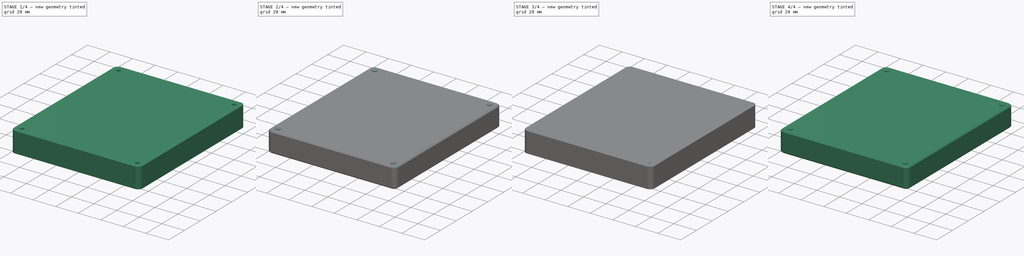
[diagram: build sequence overview — one tinted view per stage of 4, left to right]
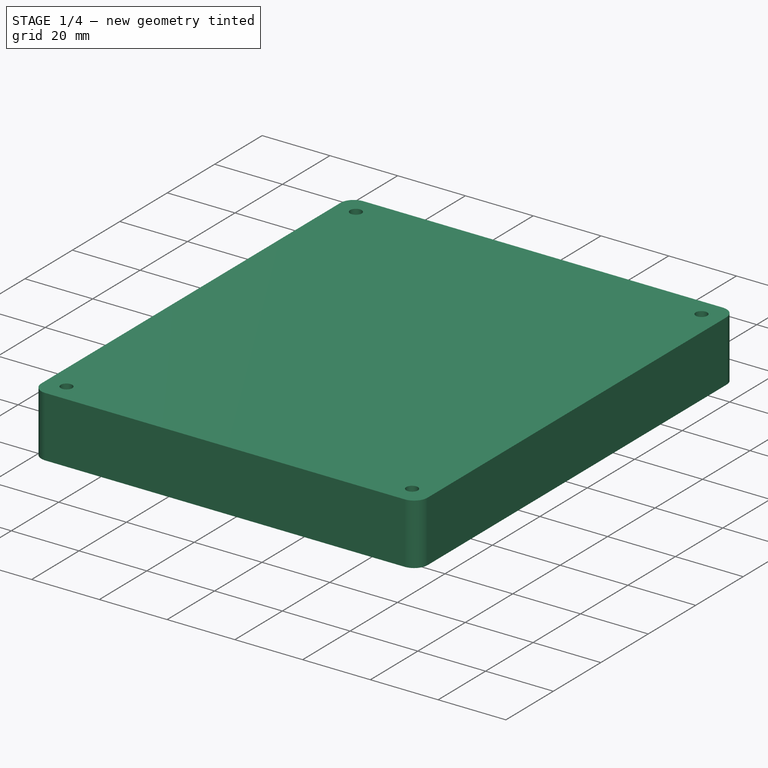
[diagram: stage 1 of 4 — iso view after this stage's code; geometry added in this stage tinted green]
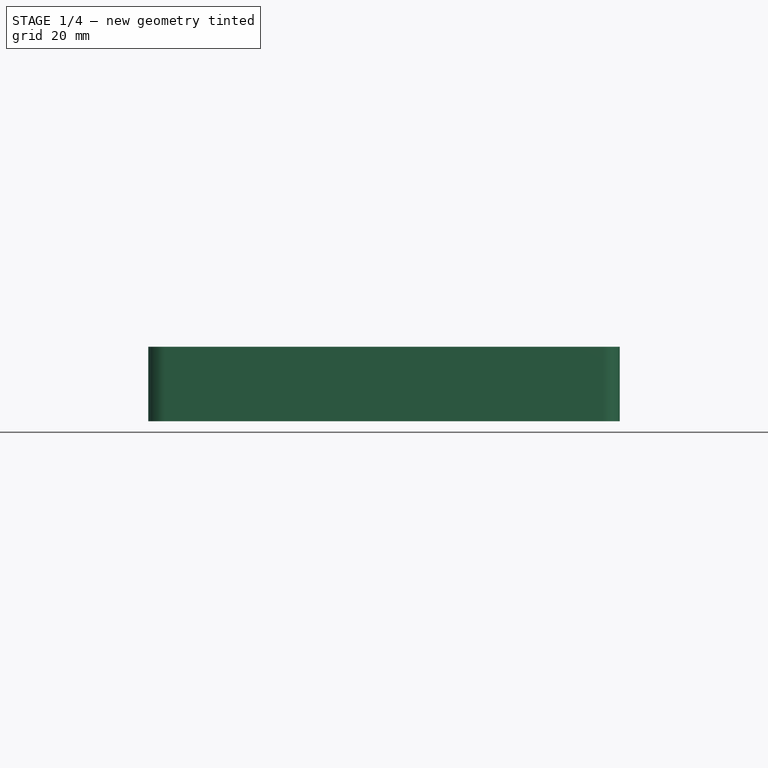
[diagram: stage 1 of 4 — front view after this stage's code; geometry added in this stage tinted green]
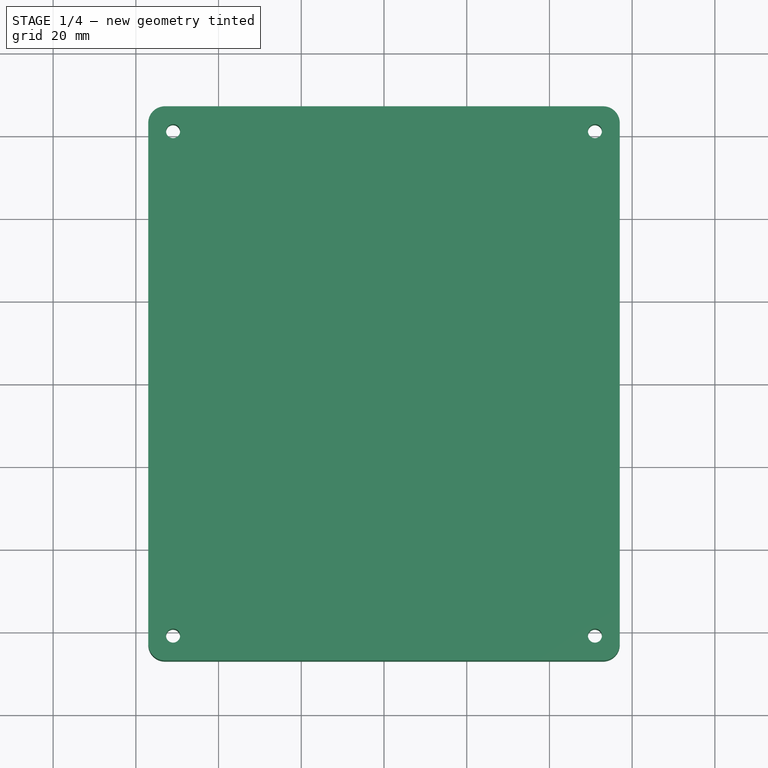
[diagram: stage 1 of 4 — top view after this stage's code; geometry added in this stage tinted green]
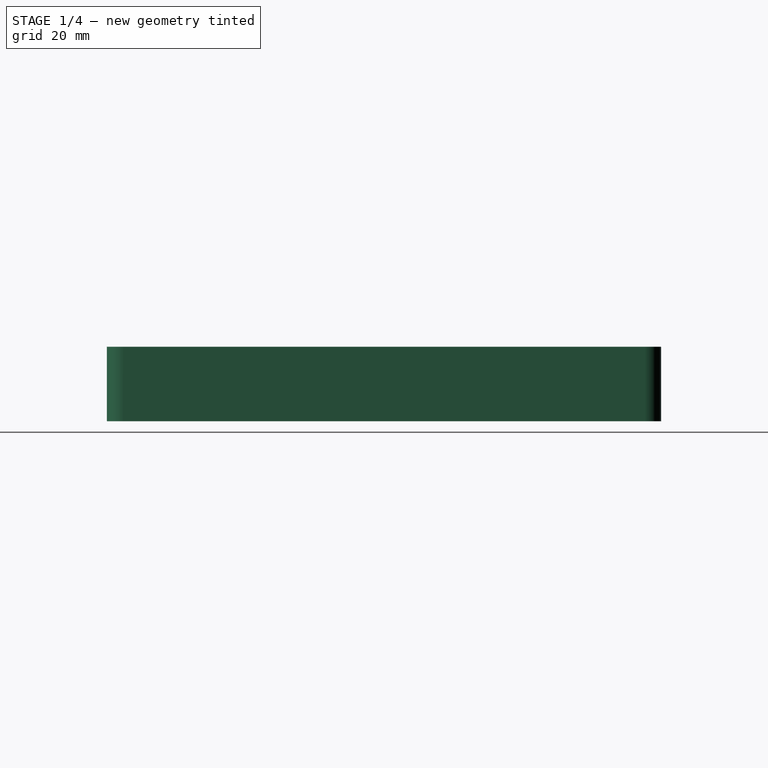
[diagram: stage 1 of 4 — right view after this stage's code; geometry added in this stage tinted green]
FCSTD DOCUMENT  (FreeCAD 0.22R36677 (Git))
Label: bit holder 3
License: All rights reserved
LicenseURL: http://en.wikipedia.org/wiki/All_rights_reserved
objects: Sketcher::SketchObject×5, Part::Extrusion×4, Part::FeaturePython×4, Part::Cut×3, Part::Chamfer×2, Spreadsheet::Sheet×1, Part::Revolution×1
note: 19 computed .brp shape members not serialized (recipe doc carries the construction recipe); baked Part::Feature solids carry a one-line shape summary decoded from their .brp

FEATURE [Sketcher::SketchObject] Sketch004  label="plate003"
  FullyConstrained = true
  expr: Constraints[19] = <<q>>.box_corner_filet
  expr: Constraints[20] = <<q>>.plate_x_size
  expr: Constraints[21] = <<q>>.plate_y_size
  sketch-geometry (10):
    g0: LineSegment StartX=-57 StartY=63 StartZ=0 EndX=-57 EndY=-63 EndZ=0
    g1: LineSegment StartX=-53 StartY=-67 StartZ=0 EndX=53 EndY=-67 EndZ=0
    g2: LineSegment StartX=57 StartY=-63 StartZ=0 EndX=57 EndY=63 EndZ=0
    g3: LineSegment StartX=53 StartY=67 StartZ=0 EndX=-53 EndY=67 EndZ=0
    g4: ArcOfCircle CenterX=-53 CenterY=63 CenterZ=0 NormalX=0 NormalY=0 NormalZ=1 AngleXU=0 Radius=4 StartAngle=1.5708 EndAngle=3.14159
    g5: ArcOfCircle CenterX=-53 CenterY=-63 CenterZ=0 NormalX=0 NormalY=0 NormalZ=1 AngleXU=0 Radius=4 StartAngle=3.14159 EndAngle=4.71239
    g6: ArcOfCircle CenterX=53 CenterY=-63 CenterZ=0 NormalX=0 NormalY=0 NormalZ=1 AngleXU=0 Radius=4 StartAngle=4.71239 EndAngle=6.28319
    g7: ArcOfCircle CenterX=53 CenterY=63 CenterZ=0 NormalX=0 NormalY=0 NormalZ=1 AngleXU=0 Radius=4 StartAngle=-9e-16 EndAngle=1.5708
    g8: GeomPoint X=-57 Y=67 Z=0
    g9: GeomPoint X=57 Y=-67 Z=0
  constraints (23):
    c: Tangent(g0,g4) = -1.5708
    c: Tangent(g0,g5) = -1.5708
    c: Tangent(g1,g5) = -1.5708
    c: Tangent(g1,g6) = -1.5708
    c: Tangent(g2,g6) = -1.5708
    c: Tangent(g2,g7) = -1.5708
    c: Tangent(g3,g7) = -1.5708
    c: Tangent(g3,g4) = -1.5708
    c: Vertical(g0)
    c: Vertical(g2)
    c: Horizontal(g1)
    c: Horizontal(g3)
    c: Equal(g4,g5)
    c: Equal(g5,g6)
    c: Equal(g6,g7)
    c: PointOnObject(g8,g0)
    c: PointOnObject(g8,g3)
    c: PointOnObject(g9,g1)
    c: PointOnObject(g9,g2)
    c: Radius(g6) = 4
    c: DistanceX(g0,g2) = 114
    c: DistanceY(g1,g3) = 134
    c: Symmetric(g5,g7,g-1)
FEATURE [Part::Extrusion] Extrude002  label="plate002"
  Base = -> Sketch004
  Dir = (0,0,1)
  DirMode = 2
  FaceMakerClass = Part::FaceMakerBullseye
  LengthFwd = 18
  LengthRev = 0
  Solid = true
  Symmetric = false
  expr: LengthFwd = <<q>>.plate_thickness
FEATURE [Sketcher::SketchObject] Sketch005
  FullyConstrained = true
  expr: Constraints[10] = <<q>>.plate_y_size - <<q>>.hole_offset
  expr: Constraints[18] = <<q>>.connecting_screw
  expr: Constraints[9] = <<q>>.plate_x_size - <<q>>.hole_offset
  sketch-geometry (8):
    g0: LineSegment StartX=-51 StartY=61 StartZ=0 EndX=-51 EndY=-61 EndZ=0
    g1: LineSegment StartX=-51 StartY=-61 StartZ=0 EndX=51 EndY=-61 EndZ=0
    g2: LineSegment StartX=51 StartY=-61 StartZ=0 EndX=51 EndY=61 EndZ=0
    g3: LineSegment StartX=51 StartY=61 StartZ=0 EndX=-51 EndY=61 EndZ=0
    g4: Circle CenterX=-51 CenterY=61 CenterZ=0 NormalX=0 NormalY=0 NormalZ=1 AngleXU=0 Radius=1.7
    g5: Circle CenterX=51 CenterY=61 CenterZ=0 NormalX=0 NormalY=0 NormalZ=1 AngleXU=0 Radius=1.7
    g6: Circle CenterX=51 CenterY=-61 CenterZ=0 NormalX=0 NormalY=0 NormalZ=1 AngleXU=0 Radius=1.7
    g7: Circle CenterX=-51 CenterY=-61 CenterZ=0 NormalX=0 NormalY=0 NormalZ=1 AngleXU=0 Radius=1.7
  constraints (19):
    c: Coincident(g0,g1)
    c: Coincident(g1,g2)
    c: Coincident(g2,g3)
    c: Coincident(g3,g0)
    c: Vertical(g0)
    c: Vertical(g2)
    c: Horizontal(g1)
    c: Horizontal(g3)
    c: Symmetric(g0,g2,g-1)
    c: DistanceX(g3,g3) = 102
    c: DistanceY(g2,g2) = 122
    c: Coincident(g4,g0)
    c: Coincident(g5,g2)
    c: Coincident(g6,g1)
    c: Coincident(g7,g0)
    c: Equal(g4,g5)
    c: Equal(g4,g6)
    c: Equal(g4,g7)
    c: Diameter(g4) = 3.4
FEATURE [Part::Extrusion] Extrude003  label="screw holes001"
  Base = -> Sketch005
  Dir = (0,0,1)
  DirMode = 2
  FaceMakerClass = Part::FaceMakerBullseye
  LengthFwd = 18
  LengthRev = 0
  Solid = true
  Symmetric = false
  expr: LengthFwd = <<q>>.plate_thickness
FEATURE [Part::Cut] Cut002
  Base = -> Extrude002
  Tool = -> Extrude003
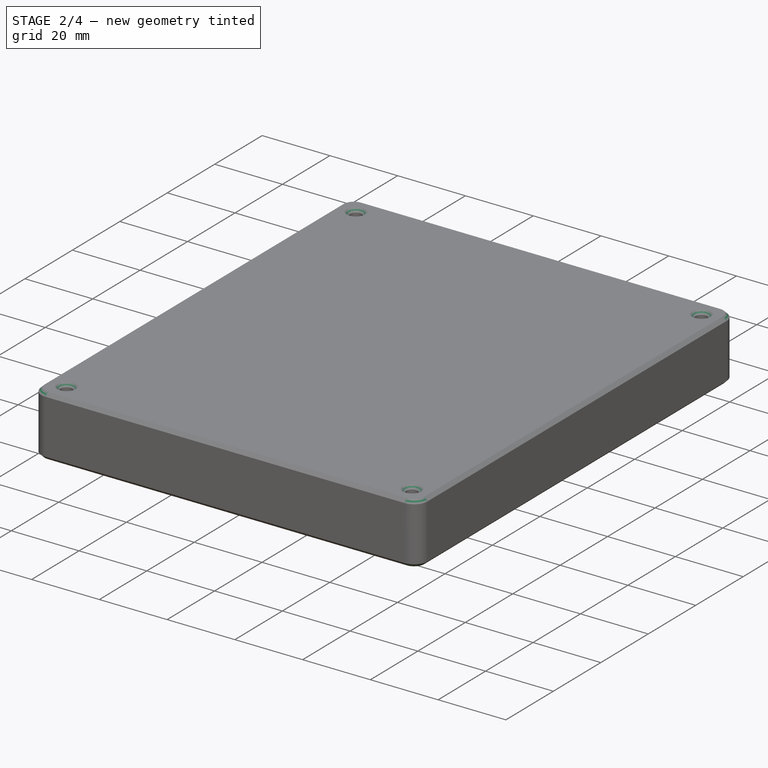
[diagram: stage 2 of 4 — iso view after this stage's code; geometry added in this stage tinted green]
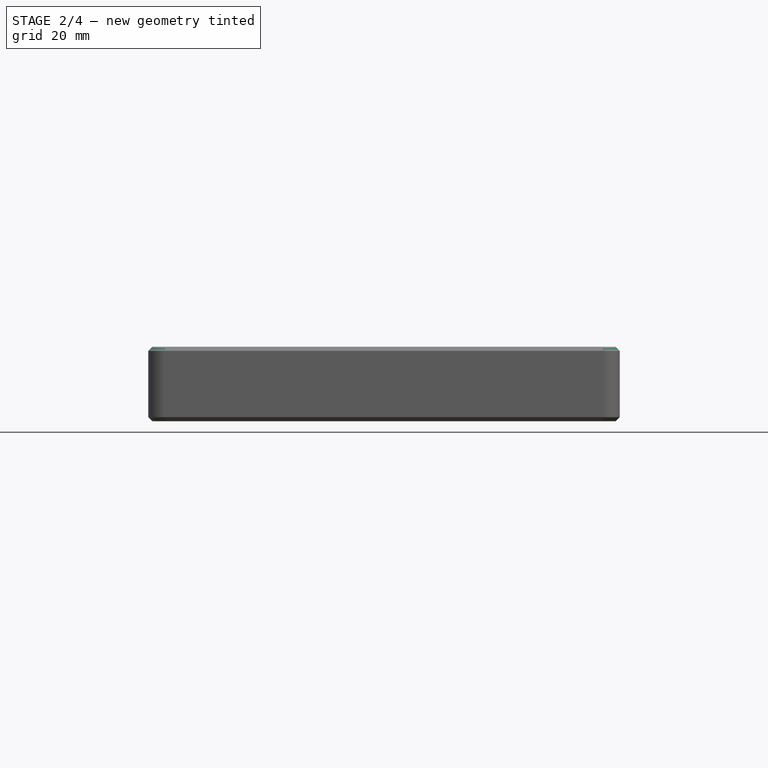
[diagram: stage 2 of 4 — front view after this stage's code; geometry added in this stage tinted green]
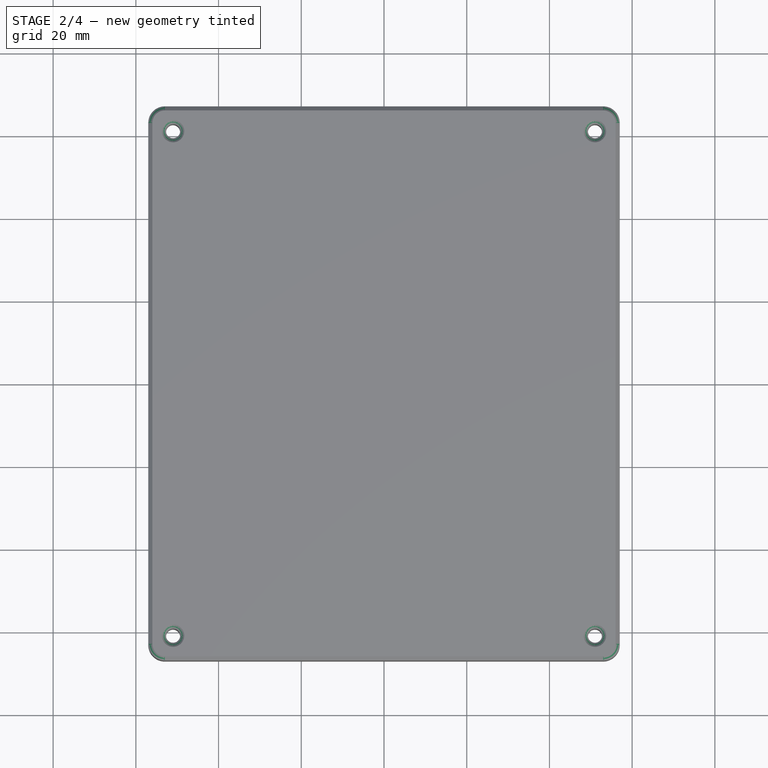
[diagram: stage 2 of 4 — top view after this stage's code; geometry added in this stage tinted green]
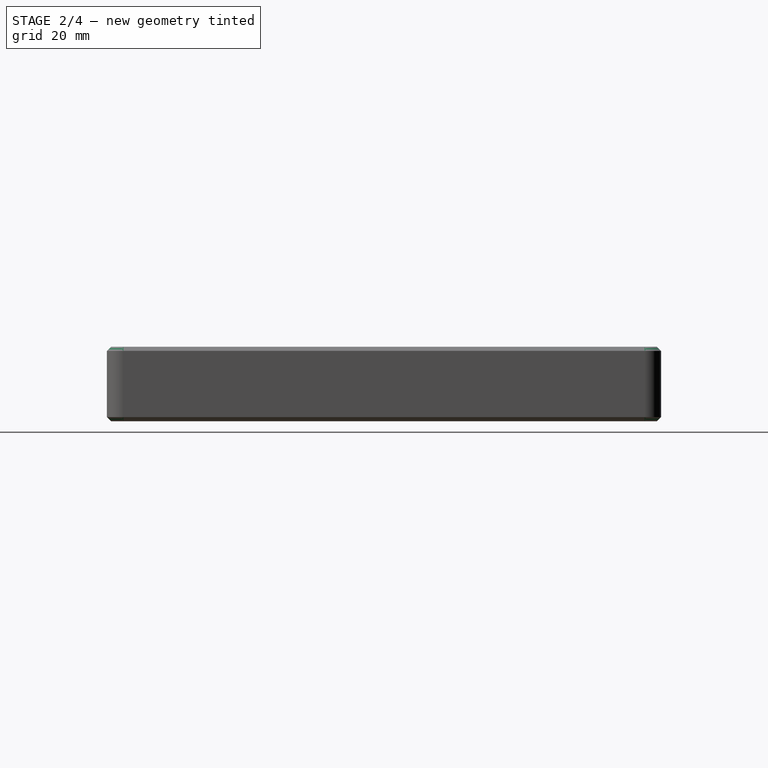
[diagram: stage 2 of 4 — right view after this stage's code; geometry added in this stage tinted green]
FEATURE [Part::FeaturePython] LinearArray  # WARN: FeaturePython — macro-defined, semantics opaque (R4)
  Alignment = 0
  CellStart = A1
  Count = 10
  Dir = (1,0,0)
  DirIsDriven = true
  DistributionLaw = 0
  DrivenProperty = 1
  EndInclusive = true
  ExposePlacement = false
  GeneratorMode = 1
  MarkerShape = 1
  MarkerSize = 0
  NumElements = 10
  OrientMode = 1
  Point = (0,0,0)
  PointIsDriven = true
  Reverse = false
  SpanEnd = 100
  SpanStart = 0
  Step = 10
  Type = lattice2LinearArray.LinearArray
  VSGVersion = 1
  Values = 0.0 | 10.0 | 20.0 | 30.0 | 40.0 | 50.0 | 60.0 | 70.0 | 80.0 | 90.0
  ValuesSource = 2
  isLattice = 1
  expr: Count = <<q>>.holes_x
  expr: Step = <<q>>.grid_spacing_x
FEATURE [Part::FeaturePython] LinearArray001  # WARN: FeaturePython — macro-defined, semantics opaque (R4)
  Alignment = 0
  CellStart = A1
  Count = 12
  Dir = (0,-1,0)
  DirIsDriven = true
  DistributionLaw = 0
  DrivenProperty = 1
  EndInclusive = true
  ExposePlacement = false
  GeneratorMode = 1
  MarkerShape = 1
  MarkerSize = 0
  NumElements = 12
  OrientMode = 1
  Point = (0,0,0)
  PointIsDriven = true
  Reverse = false
  SpanEnd = 50
  SpanStart = 0
  Step = 10
  Type = lattice2LinearArray.LinearArray
  VSGVersion = 1
  Values = 0.0 | 10.0 | 20.0 | 30.0 | 40.0 | 50.0 | 60.0 | 70.0 | 80.0 | 90.0 | 100.0 | 110.0
  ValuesSource = 2
  isLattice = 1
  expr: Count = <<q>>.holes_y
  expr: Step = <<q>>.grid_spacing_y
FEATURE [Sketcher::SketchObject] Sketch002
  FullyConstrained = true
  Placement = pos=(0,0,0) rot=(1,0,0;1.5708rad)
  expr: Constraints[12] = <<q>>.hole_depth
  expr: Constraints[9] = <<q>>.bit_hole_diameter / 2
  sketch-geometry (5):
    g0: LineSegment StartX=0 StartY=16 StartZ=0 EndX=-3.6 EndY=16 EndZ=0
    g1: LineSegment StartX=-3.6 StartY=16 StartZ=0 EndX=-2.6 EndY=15 EndZ=0
    g2: LineSegment StartX=-2.6 StartY=15 StartZ=0 EndX=-2.6 EndY=0 EndZ=0
    g3: LineSegment StartX=-2.6 StartY=0 StartZ=0 EndX=0 EndY=0 EndZ=0
    g4: LineSegment StartX=0 StartY=0 StartZ=0 EndX=0 EndY=16 EndZ=0
  constraints (14):
    c: Horizontal(g0)
    c: Coincident(g0,g1)
    c: Coincident(g1,g2)
    c: Vertical(g2)
    c: Coincident(g2,g3)
    c: Horizontal(g3)
    c: Coincident(g3,g4)
    c: Coincident(g4,g0)
    c: Vertical(g4)
    c: DistanceX(g3,g3) = 2.6
    c: DistanceX(g0,g1) = 1
    c: DistanceY(g1,g0) = 1
    c: DistanceY(g4,g4) = 16
    c: Coincident(g3,g-1)
FEATURE [Part::Revolution] Revolve  label="bit socket"
  Angle = 360
  Axis = (0,0,1)
  Base = (0,0,0)
  FaceMakerClass = Part::FaceMakerBullseye
  Placement = pos=(-45,55,2) rot=(0,0,1;0rad)
  Solid = true
  Source = -> Sketch002
  Symmetric = false
  expr: .Placement.Base.x = -<<q>>.plate_x_size / 2 + <<q>>.hole_offset
  expr: .Placement.Base.y = <<q>>.plate_y_size / 2 - <<q>>.hole_offset
  expr: .Placement.Base.z = <<q>>.plate_bottom_pad
FEATURE [Part::FeaturePython] Populate  label="Populate LinearArray with bit socket"  # WARN: FeaturePython — macro-defined, semantics opaque (R4)
  Copying = 0
  ExposePlacement = false
  MarkerShape = 1
  MarkerSize = 0
  NumElements = 0
  Object = -> Revolve
  OutputCompounding = 1
  PlacementsTo = -> LinearArray
  Referencing = 1
  Type = lattice2PopulateCopies.LatticePopulateCopies
  isLattice = 0
FEATURE [Part::Chamfer] Chamfer001  label="magnet plate with screw holes001"
  Base = -> Cut002
  EdgeLinks = -> Cut002 [Edge12,Edge16,Edge17,Edge18,Edge19,Edge20,Edge25,Edge26,Edge27,Edge28]
  Edges = 10 edges r=1: [Edge12,Edge16,Edge17,Edge18,Edge19,Edge20,Edge25,Edge26,Edge27,Edge28]
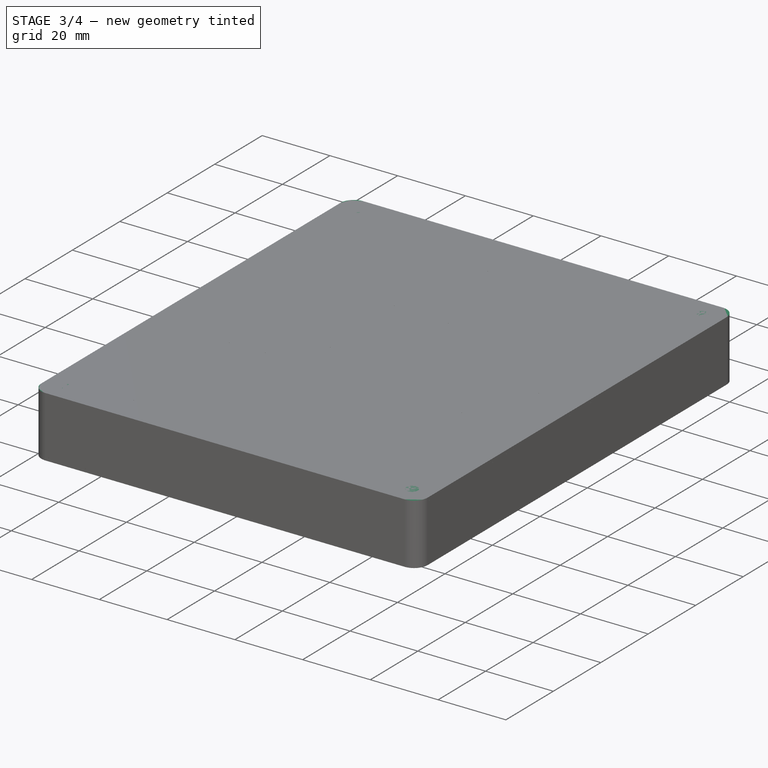
[diagram: stage 3 of 4 — iso view after this stage's code; geometry added in this stage tinted green]
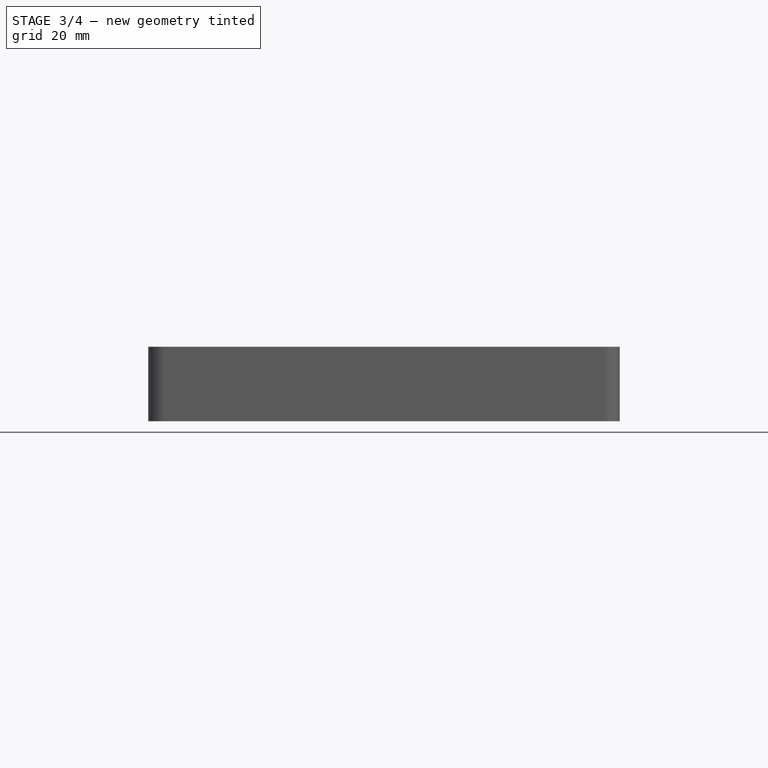
[diagram: stage 3 of 4 — front view after this stage's code; geometry added in this stage tinted green]
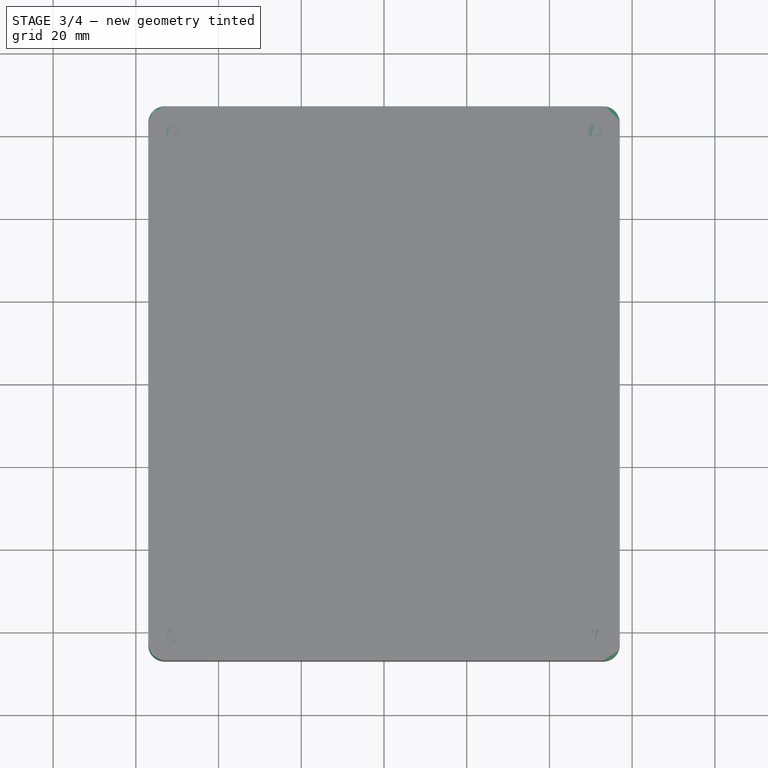
[diagram: stage 3 of 4 — top view after this stage's code; geometry added in this stage tinted green]
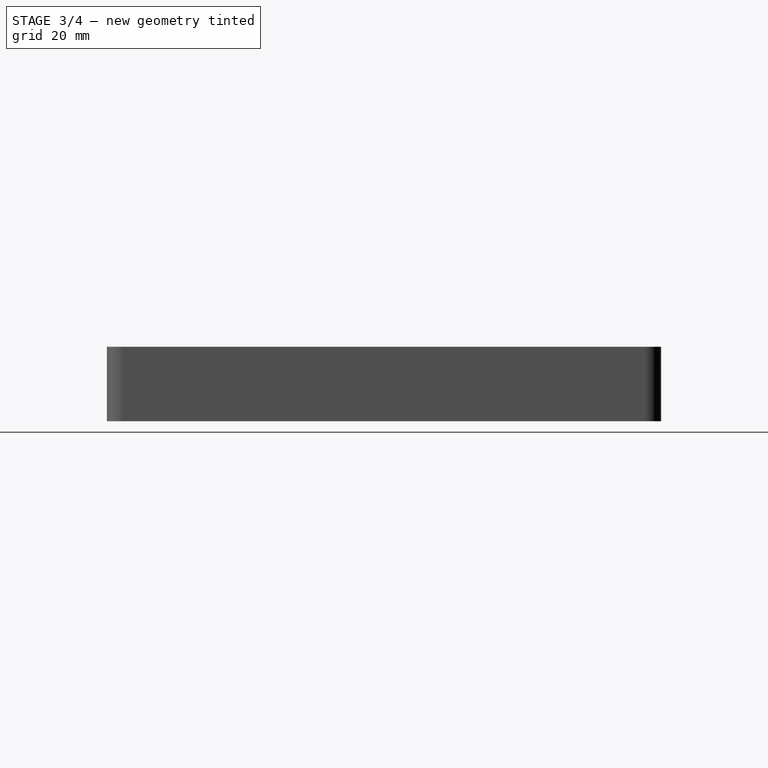
[diagram: stage 3 of 4 — right view after this stage's code; geometry added in this stage tinted green]
FEATURE [Spreadsheet::Sheet] Spreadsheet  label="q"
  cells = A3='bit hole diameter; B3(bit_hole_diameter)=5.2; A5='grid spacing x; B5(grid_spacing_x)=10; A6='grid spacing y; B6(grid_spacing_y)=10; A7='holes x; B7(holes_x)=10; A8='holes y; B8(holes_y)=12; A10='hole offset; B10(hole_offset)=12; A12='plate x size; B12(plate_x_size)==grid_spacing_x * (holes_x - 1) + 2 * hole_offset; A13='plate y size; B13(plate_y_size)==grid_spacing_y * (holes_y - 1) + 2 * hole_offset; A14='plate thickness; B14(plate_thickness)=18; A15='plate bottom pad; B15(plate_bottom_pad)=2; A16='hole depth; B16(hole_depth)==plate_thickness - plate_bottom_pad; A18='box corner filet; B18(box_corner_filet)=4; A20='connecting screw; B20(connecting_screw)=3.4; A22='magnet length; B22=60; A23='magnet width; B23=10; A24='magnet height; B24=3
FEATURE [Sketcher::SketchObject] Sketch  label="plate001"
  FullyConstrained = true
  expr: Constraints[19] = <<q>>.box_corner_filet
  expr: Constraints[20] = <<q>>.plate_x_size
  expr: Constraints[21] = <<q>>.plate_y_size
  sketch-geometry (10):
    g0: LineSegment StartX=-57 StartY=63 StartZ=0 EndX=-57 EndY=-63 EndZ=0
    g1: LineSegment StartX=-53 StartY=-67 StartZ=0 EndX=53 EndY=-67 EndZ=0
    g2: LineSegment StartX=57 StartY=-63 StartZ=0 EndX=57 EndY=63 EndZ=0
    g3: LineSegment StartX=53 StartY=67 StartZ=0 EndX=-53 EndY=67 EndZ=0
    g4: ArcOfCircle CenterX=-53 CenterY=63 CenterZ=0 NormalX=0 NormalY=0 NormalZ=1 AngleXU=0 Radius=4 StartAngle=1.5708 EndAngle=3.14159
    g5: ArcOfCircle CenterX=-53 CenterY=-63 CenterZ=0 NormalX=0 NormalY=0 NormalZ=1 AngleXU=0 Radius=4 StartAngle=3.14159 EndAngle=4.71239
    g6: ArcOfCircle CenterX=53 CenterY=-63 CenterZ=0 NormalX=0 NormalY=0 NormalZ=1 AngleXU=0 Radius=4 StartAngle=4.71239 EndAngle=6.28319
    g7: ArcOfCircle CenterX=53 CenterY=63 CenterZ=0 NormalX=0 NormalY=0 NormalZ=1 AngleXU=0 Radius=4 StartAngle=-9e-16 EndAngle=1.5708
    g8: GeomPoint X=-57 Y=67 Z=0
    g9: GeomPoint X=57 Y=-67 Z=0
  constraints (23):
    c: Tangent(g0,g4) = -1.5708
    c: Tangent(g0,g5) = -1.5708
    c: Tangent(g1,g5) = -1.5708
    c: Tangent(g1,g6) = -1.5708
    c: Tangent(g2,g6) = -1.5708
    c: Tangent(g2,g7) = -1.5708
    c: Tangent(g3,g7) = -1.5708
    c: Tangent(g3,g4) = -1.5708
    c: Vertical(g0)
    c: Vertical(g2)
    c: Horizontal(g1)
    c: Horizontal(g3)
    c: Equal(g4,g5)
    c: Equal(g5,g6)
    c: Equal(g6,g7)
    c: PointOnObject(g8,g0)
    c: PointOnObject(g8,g3)
    c: PointOnObject(g9,g1)
    c: PointOnObject(g9,g2)
    c: Radius(g6) = 4
    c: DistanceX(g0,g2) = 114
    c: DistanceY(g1,g3) = 134
    c: Symmetric(g5,g7,g-1)
FEATURE [Part::Extrusion] Extrude  label="plate"
  Base = -> Sketch
  Dir = (0,0,1)
  DirMode = 2
  FaceMakerClass = Part::FaceMakerBullseye
  LengthFwd = 18
  LengthRev = 0
  Solid = true
  Symmetric = false
  expr: LengthFwd = <<q>>.plate_thickness
FEATURE [Sketcher::SketchObject] Sketch003
  FullyConstrained = true
  expr: Constraints[10] = <<q>>.plate_y_size - <<q>>.hole_offset
  expr: Constraints[18] = <<q>>.connecting_screw
  expr: Constraints[9] = <<q>>.plate_x_size - <<q>>.hole_offset
  sketch-geometry (8):
    g0: LineSegment StartX=-51 StartY=61 StartZ=0 EndX=-51 EndY=-61 EndZ=0
    g1: LineSegment StartX=-51 StartY=-61 StartZ=0 EndX=51 EndY=-61 EndZ=0
    g2: LineSegment StartX=51 StartY=-61 StartZ=0 EndX=51 EndY=61 EndZ=0
    g3: LineSegment StartX=51 StartY=61 StartZ=0 EndX=-51 EndY=61 EndZ=0
    g4: Circle CenterX=-51 CenterY=61 CenterZ=0 NormalX=0 NormalY=0 NormalZ=1 AngleXU=0 Radius=1.7
    g5: Circle CenterX=51 CenterY=61 CenterZ=0 NormalX=0 NormalY=0 NormalZ=1 AngleXU=0 Radius=1.7
    g6: Circle CenterX=51 CenterY=-61 CenterZ=0 NormalX=0 NormalY=0 NormalZ=1 AngleXU=0 Radius=1.7
    g7: Circle CenterX=-51 CenterY=-61 CenterZ=0 NormalX=0 NormalY=0 NormalZ=1 AngleXU=0 Radius=1.7
  constraints (19):
    c: Coincident(g0,g1)
    c: Coincident(g1,g2)
    c: Coincident(g2,g3)
    c: Coincident(g3,g0)
    c: Vertical(g0)
    c: Vertical(g2)
    c: Horizontal(g1)
    c: Horizontal(g3)
    c: Symmetric(g0,g2,g-1)
    c: DistanceX(g3,g3) = 102
    c: DistanceY(g2,g2) = 122
    c: Coincident(g4,g0)
    c: Coincident(g5,g2)
    c: Coincident(g6,g1)
    c: Coincident(g7,g0)
    c: Equal(g4,g5)
    c: Equal(g4,g6)
    c: Equal(g4,g7)
    c: Diameter(g4) = 3.4
FEATURE [Part::Extrusion] Extrude001  label="screw holes"
  Base = -> Sketch003
  Dir = (0,0,1)
  DirMode = 2
  FaceMakerClass = Part::FaceMakerBullseye
  LengthFwd = 18
  LengthRev = 0
  Solid = true
  Symmetric = false
  expr: LengthFwd = <<q>>.plate_thickness
FEATURE [Part::FeaturePython] Populate001  label="Populate LinearArray001 with Populate LinearArray with bit socket"  # WARN: FeaturePython — macro-defined, semantics opaque (R4)
  Copying = 0
  ExposePlacement = false
  MarkerShape = 1
  MarkerSize = 0
  NumElements = 0
  Object = -> Populate
  OutputCompounding = 1
  PlacementsTo = -> LinearArray001
  Referencing = 1
  Type = lattice2PopulateCopies.LatticePopulateCopies
  isLattice = 0
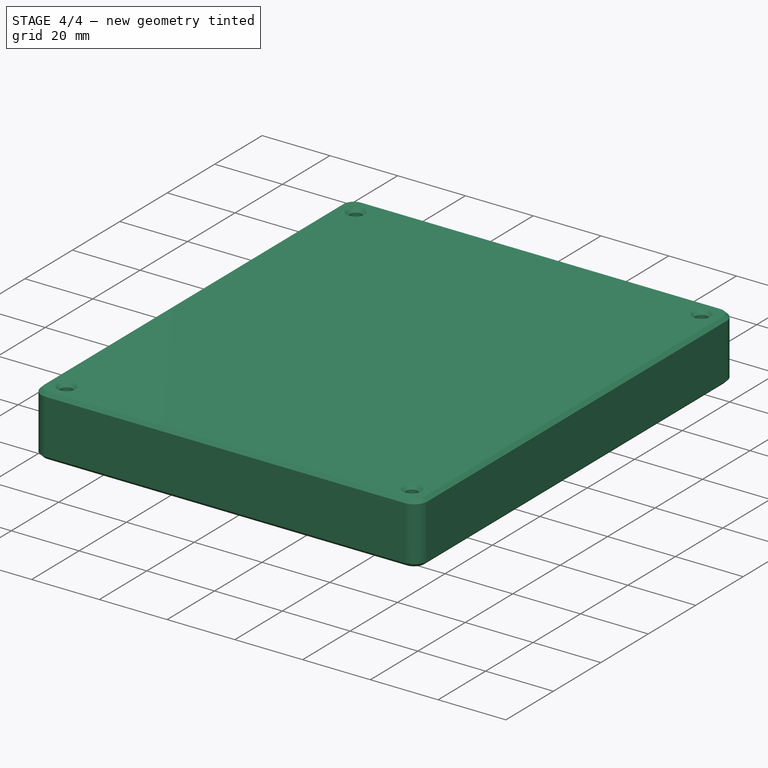
[diagram: stage 4 of 4 — iso view after this stage's code; geometry added in this stage tinted green]
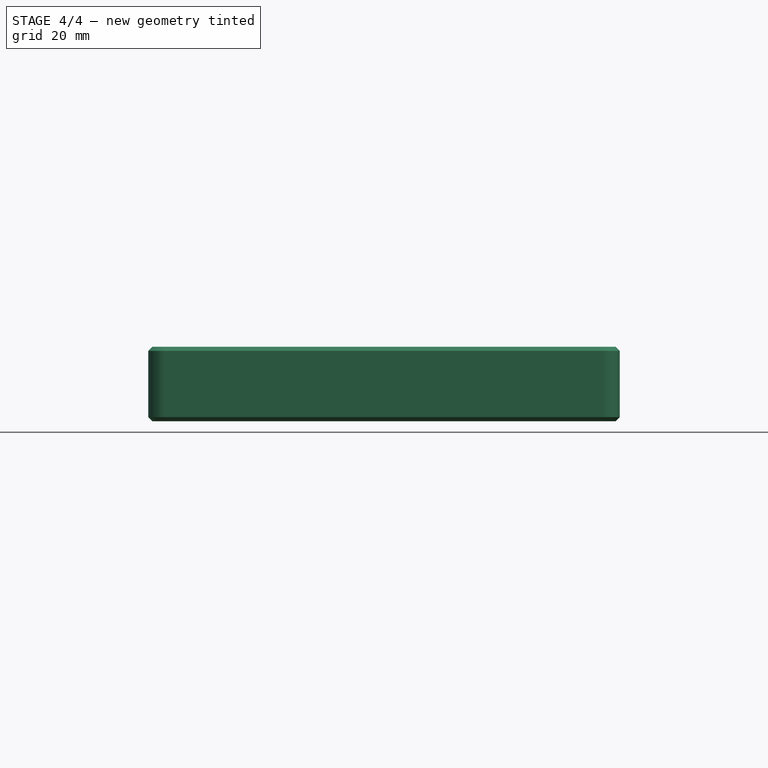
[diagram: stage 4 of 4 — front view after this stage's code; geometry added in this stage tinted green]
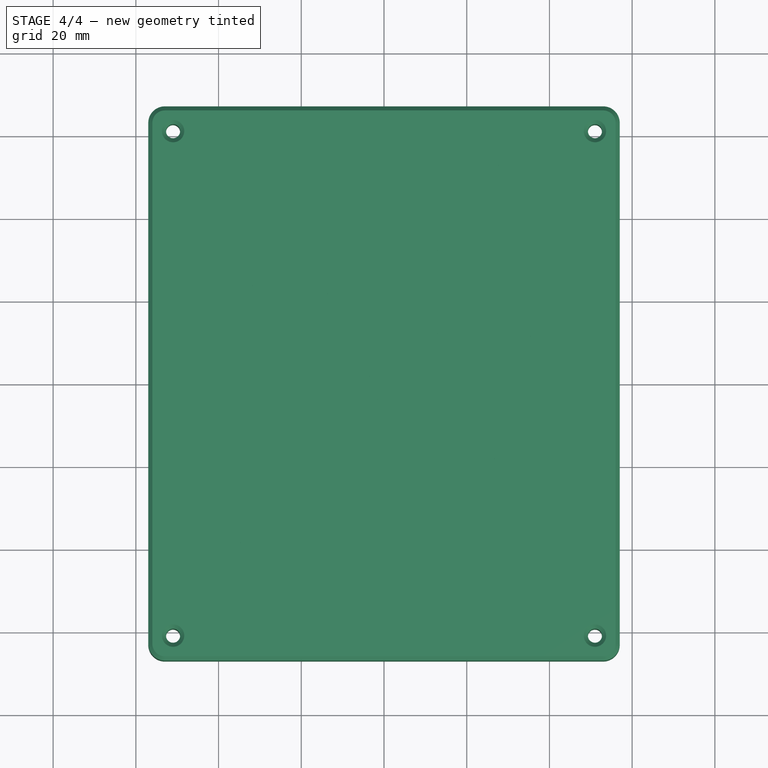
[diagram: stage 4 of 4 — top view after this stage's code; geometry added in this stage tinted green]
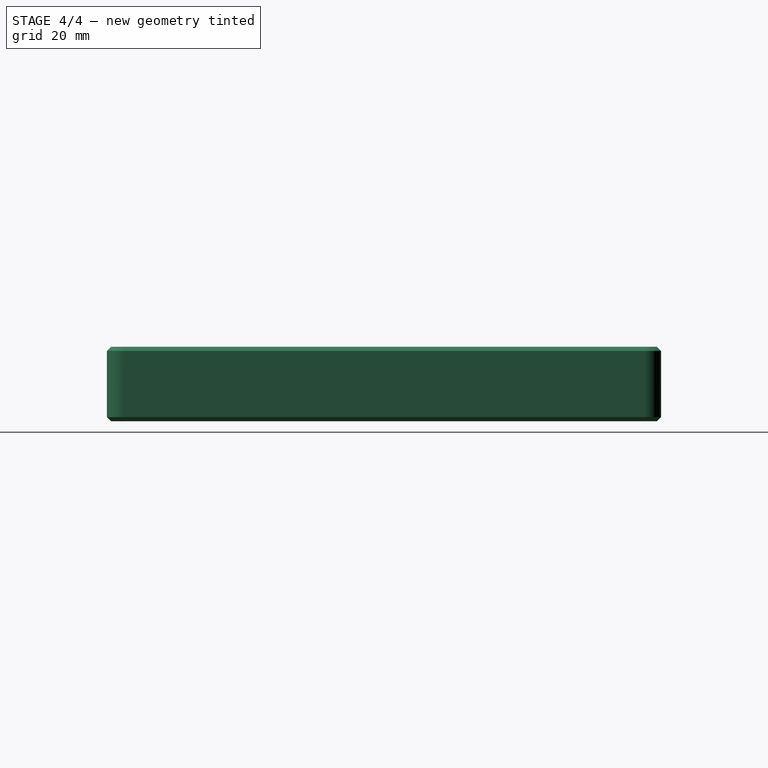
[diagram: stage 4 of 4 — right view after this stage's code; geometry added in this stage tinted green]
FEATURE [Part::Cut] Cut
  Base = -> Extrude
  Tool = -> Extrude001
FEATURE [Part::Chamfer] Chamfer  label="holey plate with screw holes"
  Base = -> Cut
  EdgeLinks = -> Cut [Edge12,Edge16,Edge17,Edge18,Edge19,Edge20,Edge25,Edge26,Edge27,Edge28]
  Edges = 10 edges r=1: [Edge12,Edge16,Edge17,Edge18,Edge19,Edge20,Edge25,Edge26,Edge27,Edge28]
FEATURE [Part::Cut] Cut001
  Base = -> Chamfer
  Tool = -> Populate001
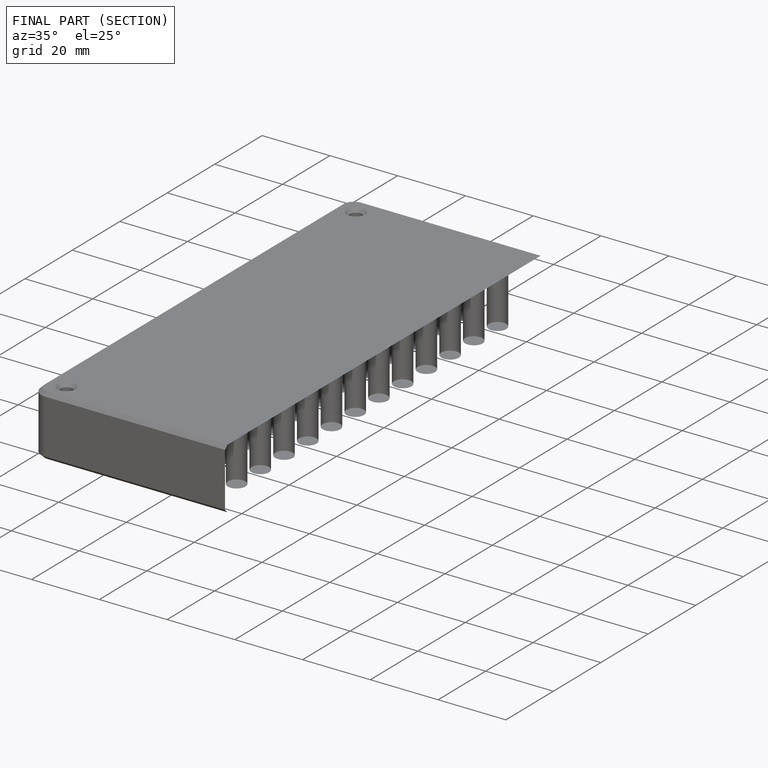
[diagram: finished part — half-section view (interior)]
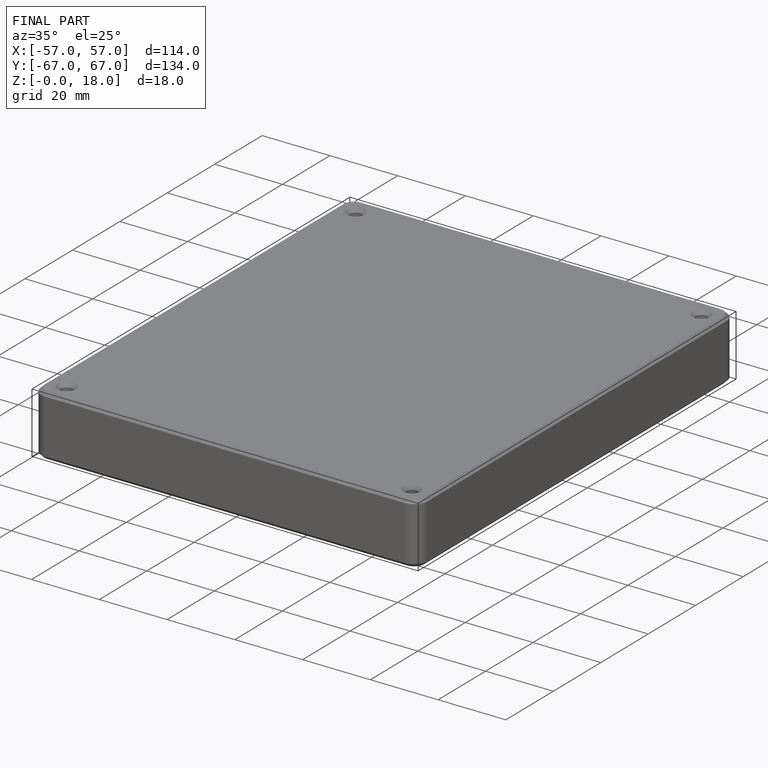
[diagram: finished part — iso view with bounding-box wireframe]
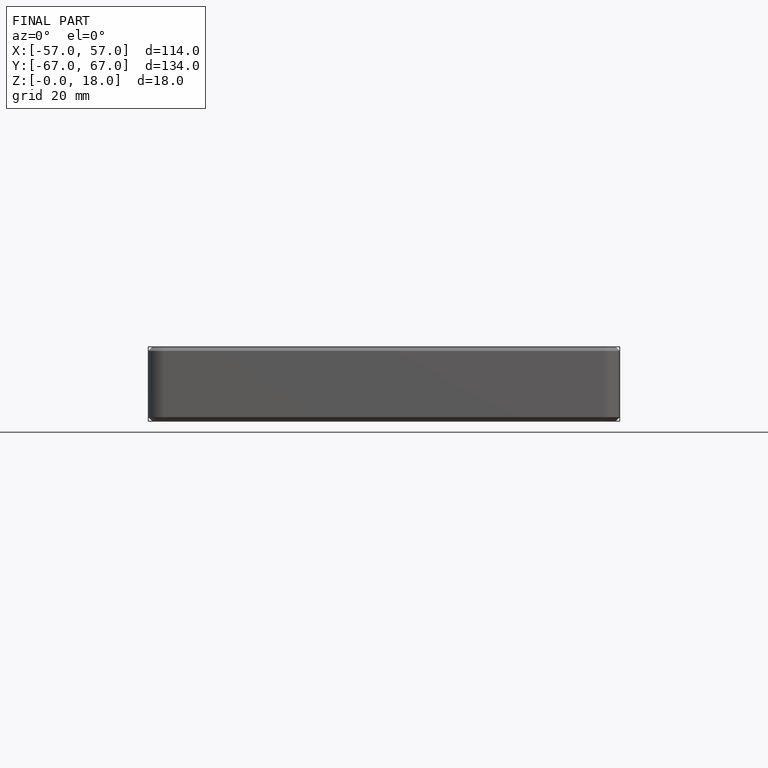
[diagram: finished part — front view with bounding-box wireframe]
